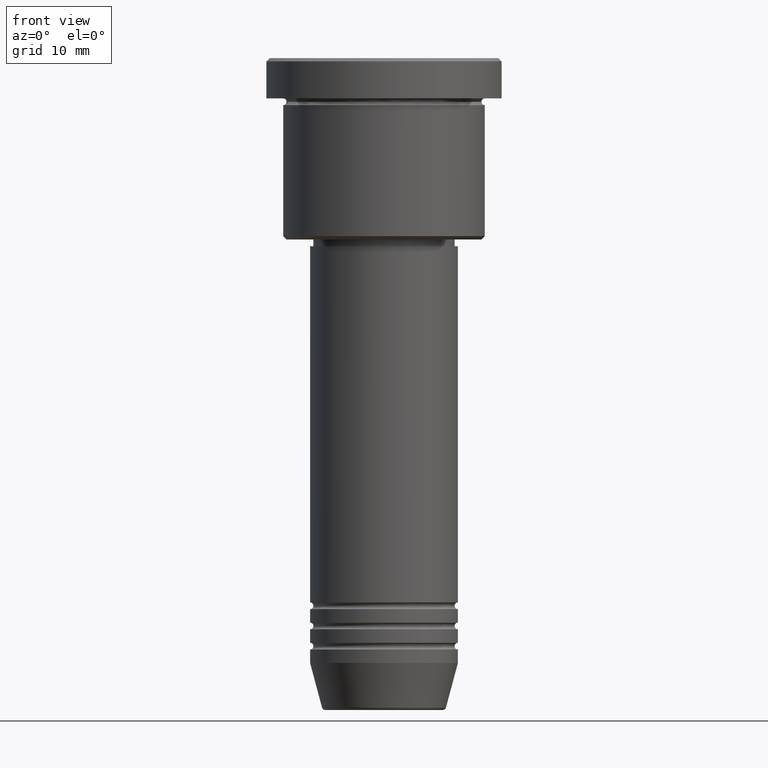
[diagram: clean part render]
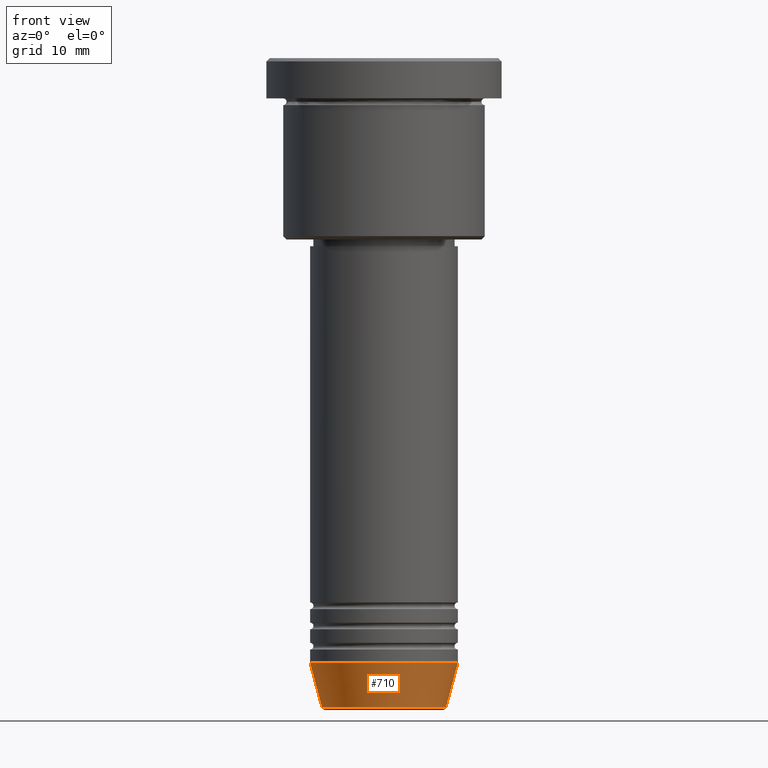
[diagram: same view with one face highlighted and labeled with its STEP entity id]
A machine part, front view. The second image highlights one B-rep face of the part: STEP entity #710.
In plain terms, the highlighted conical surface has half-angle 15 deg.
Its self-contained STEP definition (entity closure, byte-faithful):
#5 = VERTEX_POINT ( 'NONE', #656 ) ;
#11 = DIRECTION ( 'NONE',  ( 0.2588190451025213501, 0.000000000000000000, 0.9659258262890680902 ) ) ;
#34 = AXIS2_PLACEMENT_3D ( 'NONE', #507, #487, #118 ) ;
#48 = ORIENTED_EDGE ( 'NONE', *, *, #638, .T. ) ;
#78 = CARTESIAN_POINT ( 'NONE',  ( -11.00000000000000000, 1.347111479062088405E-15, -90.00000000000000000 ) ) ;
#100 = LINE ( 'NONE', #844, #289 ) ;
#118 = DIRECTION ( 'NONE',  ( 1.000000000000000000, 0.000000000000000000, 0.000000000000000000 ) ) ;
#121 = CARTESIAN_POINT ( 'NONE',  ( 0.000000000000000000, 0.000000000000000000, -90.00000000000000000 ) ) ;
#215 = ORIENTED_EDGE ( 'NONE', *, *, #227, .F. ) ;
#218 = CIRCLE ( 'NONE', #34, 9.223655072137187716 ) ;
#227 = EDGE_CURVE ( 'NONE', #901, #5, #1047, .T. ) ;
#289 = VECTOR ( 'NONE', #11, 1000.000000000000000 ) ;
#302 = FACE_OUTER_BOUND ( 'NONE', #551, .T. ) ;
#315 = DIRECTION ( 'NONE',  ( -0.000000000000000000, -0.000000000000000000, 1.000000000000000000 ) ) ;
#396 = EDGE_CURVE ( 'NONE', #712, #901, #1094, .T. ) ;
#397 = CARTESIAN_POINT ( 'NONE',  ( 0.000000000000000000, 0.000000000000000000, -90.00000000000000000 ) ) ;
#407 = DIRECTION ( 'NONE',  ( 1.000000000000000000, 0.000000000000000000, 0.000000000000000000 ) ) ;
#458 = ORIENTED_EDGE ( 'NONE', *, *, #396, .F. ) ;
#487 = DIRECTION ( 'NONE',  ( -0.000000000000000000, -0.000000000000000000, 1.000000000000000000 ) ) ;
#491 = DIRECTION ( 'NONE',  ( -0.000000000000000000, -0.000000000000000000, 1.000000000000000000 ) ) ;
#507 = CARTESIAN_POINT ( 'NONE',  ( 0.000000000000000000, 0.000000000000000000, -96.62940952255125637 ) ) ;
#538 = AXIS2_PLACEMENT_3D ( 'NONE', #121, #491, #407 ) ;
#542 = ORIENTED_EDGE ( 'NONE', *, *, #996, .T. ) ;
#551 = EDGE_LOOP ( 'NONE', ( #458, #542, #48, #215 ) ) ;
#599 = AXIS2_PLACEMENT_3D ( 'NONE', #397, #315, #1039 ) ;
#600 = CARTESIAN_POINT ( 'NONE',  ( -9.223655072137187716, 1.238341722557647004E-15, -96.62940952255125637 ) ) ;
#638 = EDGE_CURVE ( 'NONE', #1062, #5, #100, .T. ) ;
#656 = CARTESIAN_POINT ( 'NONE',  ( 11.00000000000000000, 0.000000000000000000, -90.00000000000000000 ) ) ;
#702 = DIRECTION ( 'NONE',  ( -0.2588190451025213501, 3.169619151431772337E-17, 0.9659258262890680902 ) ) ;
#710 = ADVANCED_FACE ( 'NONE', ( #302 ), #975, .T. ) ;
#712 = VERTEX_POINT ( 'NONE', #600 ) ;
#765 = CARTESIAN_POINT ( 'NONE',  ( -11.00000000000000000, 1.347111479062088405E-15, -90.00000000000000000 ) ) ;
#844 = CARTESIAN_POINT ( 'NONE',  ( 11.00000000000000000, 0.000000000000000000, -90.00000000000000000 ) ) ;
#901 = VERTEX_POINT ( 'NONE', #765 ) ;
#975 = CONICAL_SURFACE ( 'NONE', #599, 11.00000000000000000, 0.2617993877991500740 ) ;
#996 = EDGE_CURVE ( 'NONE', #712, #1062, #218, .T. ) ;
#1033 = VECTOR ( 'NONE', #702, 1000.000000000000000 ) ;
#1039 = DIRECTION ( 'NONE',  ( 1.000000000000000000, 0.000000000000000000, 0.000000000000000000 ) ) ;
#1047 = CIRCLE ( 'NONE', #538, 11.00000000000000000 ) ;
#1062 = VERTEX_POINT ( 'NONE', #1154 ) ;
#1094 = LINE ( 'NONE', #78, #1033 ) ;
#1154 = CARTESIAN_POINT ( 'NONE',  ( 9.223655072137187716, 0.000000000000000000, -96.62940952255125637 ) ) ;